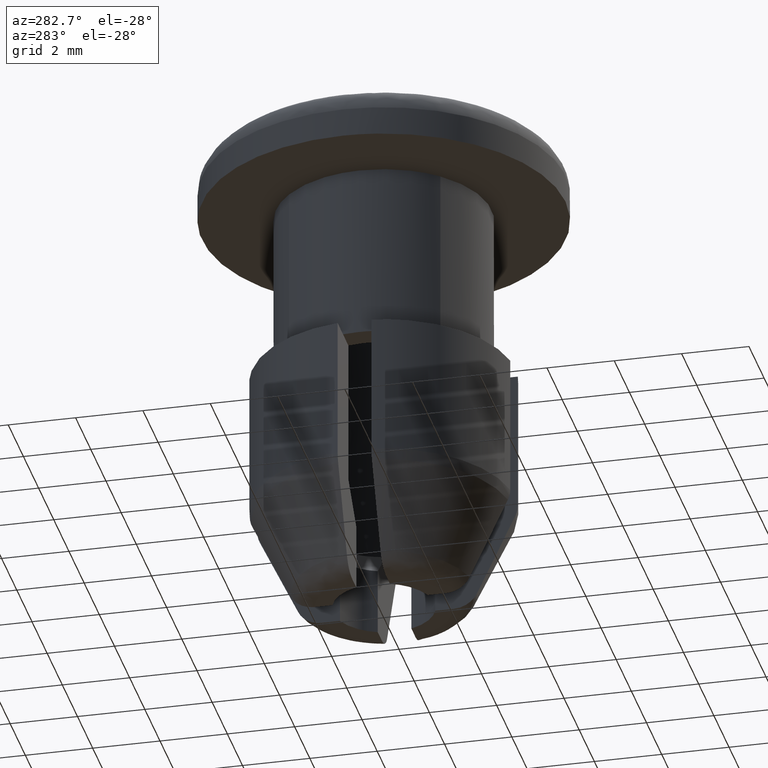
[diagram: clean part render]
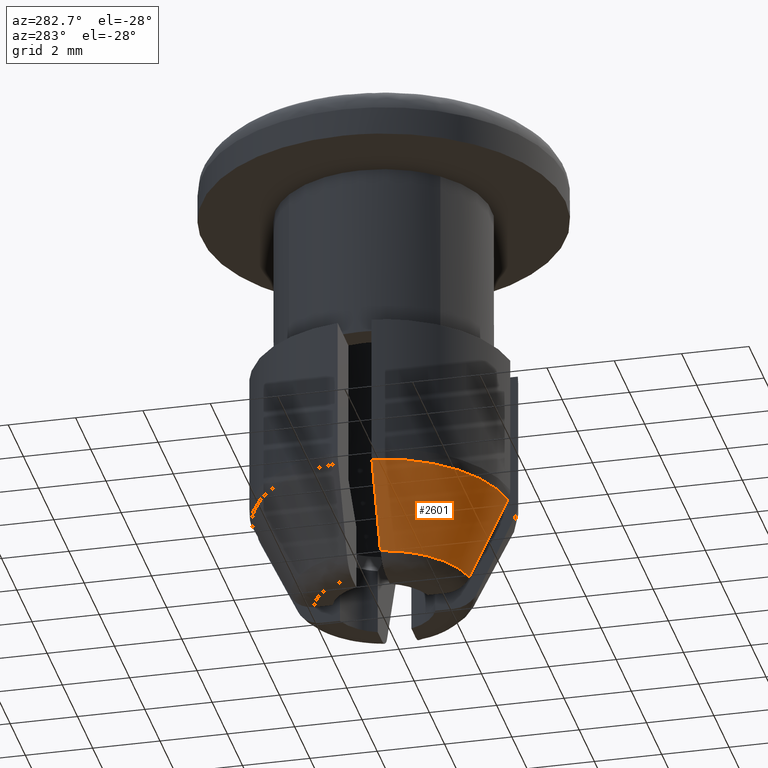
[diagram: same view with one face highlighted and labeled with its STEP entity id]
A machine part, auxiliary view. The second image highlights one B-rep face of the part: STEP entity #2601.
In plain terms, the highlighted face is a freeform B-spline surface patch.
Its self-contained STEP definition (entity closure, byte-faithful):
#1328=CARTESIAN_POINT('',(-2.659426441463000,-0.500000000000000,-14.258784187289519));
#1329=VERTEX_POINT('',#1328);
#1348=CARTESIAN_POINT('',(-3.796920079485480,-0.500000000000000,-11.850999999999880));
#1349=VERTEX_POINT('',#1348);
#1350=CARTESIAN_POINT('',(-2.659426441463000,-0.500000000000000,-14.258784187289519));
#1351=CARTESIAN_POINT('',(-3.040188665878700,-0.500000000000000,-13.456947466627080));
#1352=CARTESIAN_POINT('',(-3.418877603597177,-0.500000000000000,-12.654123893196330));
#1353=CARTESIAN_POINT('',(-3.796920079485477,-0.500000000000000,-11.850999999999880));
#1354=QUASI_UNIFORM_CURVE('',3,(#1350,#1351,#1352,#1353),.UNSPECIFIED.,.F.,.U.);
#1355=EDGE_CURVE('',#1329,#1349,#1354,.T.);
#1804=CARTESIAN_POINT('',(-0.500000000000000,-3.796920079485480,-11.850999999999880));
#1805=VERTEX_POINT('',#1804);
#1819=CARTESIAN_POINT('',(-0.500000000000000,-2.659426441460455,-14.258784187287681));
#1820=VERTEX_POINT('',#1819);
#1821=CARTESIAN_POINT('',(-0.500000000000000,-3.796920079485480,-11.850999999999880));
#1822=CARTESIAN_POINT('',(-0.500000000000000,-3.507637890788905,-12.465541227041420));
#1823=CARTESIAN_POINT('',(-0.500000000000000,-3.217934836621791,-13.079884380166090));
#1824=CARTESIAN_POINT('',(-0.500000000000000,-2.838091228185950,-13.882158835009999));
#1825=CARTESIAN_POINT('',(-0.500000000000000,-2.748823687846236,-14.070502242906169));
#1826=CARTESIAN_POINT('',(-0.500000000000000,-2.659426441460455,-14.258784187287681));
#1827=B_SPLINE_CURVE_WITH_KNOTS('',3,(#1821,#1822,#1823,#1824,#1825,#1826),.UNSPECIFIED.,.F.,.U.,(4,2,4),(0.0,0.124999999999997,0.163357270139191),.UNSPECIFIED.);
#1828=EDGE_CURVE('',#1805,#1820,#1827,.T.);
#2454=CARTESIAN_POINT('',(-0.500000000000000,-2.659426441460454,-14.258784187287681));
#2455=CARTESIAN_POINT('',(-2.317683014058468,-2.317683014058066,-14.258784187287675));
#2456=CARTESIAN_POINT('',(-2.659426441463000,-0.500000000000000,-14.258784187289519));
#2464=(BOUNDED_CURVE()B_SPLINE_CURVE(2,(#2454,#2455,#2456),.UNSPECIFIED.,.F.,.U.)CURVE()GEOMETRIC_REPRESENTATION_ITEM()QUASI_UNIFORM_CURVE()RATIONAL_B_SPLINE_CURVE((1.0,0.825585596460392,1.0))REPRESENTATION_ITEM(''));
#2465=EDGE_CURVE('',#1820,#1329,#2464,.T.);
#2569=CARTESIAN_POINT('',(-0.326444129688414,-2.657957379044823,-14.318978791971761));
#2570=CARTESIAN_POINT('',(-0.470357075523609,-3.829718306980141,-11.789300530200579));
#2571=CARTESIAN_POINT('',(-2.478815576151761,-2.393608135092906,-14.318978791971759));
#2572=CARTESIAN_POINT('',(-3.571601812150740,-3.448830657320825,-11.789300530200579));
#2573=CARTESIAN_POINT('',(-2.667746184126458,-0.233309870570393,-14.318978791971761));
#2574=CARTESIAN_POINT('',(-3.843822508319167,-0.336164563648382,-11.789300530200579));
#2582=(BOUNDED_SURFACE()B_SPLINE_SURFACE(1,2,((#2569,#2571,#2573),(#2570,#2572,#2574)),.UNSPECIFIED.,.F.,.F.,.U.)B_SPLINE_SURFACE_WITH_KNOTS((2,2),(3,3),(0.0,2.791595729379967),(0.0,5.465457942630471),.UNSPECIFIED.)GEOMETRIC_REPRESENTATION_ITEM()RATIONAL_B_SPLINE_SURFACE(((1.0,0.777145961456971,1.0),(1.0,0.777145961456971,1.0)))REPRESENTATION_ITEM('')SURFACE());
#2583=ORIENTED_EDGE('',*,*,#1355,.F.);
#2584=ORIENTED_EDGE('',*,*,#2465,.F.);
#2585=ORIENTED_EDGE('',*,*,#1828,.F.);
#2586=CARTESIAN_POINT('',(-0.500000000000000,-3.796920079485477,-11.850999999999880));
#2587=CARTESIAN_POINT('',(-3.413282495064746,-3.413282495064748,-11.850999999999878));
#2588=CARTESIAN_POINT('',(-3.796920079485477,-0.500000000000001,-11.850999999999880));
#2596=(BOUNDED_CURVE()B_SPLINE_CURVE(2,(#2586,#2587,#2588),.UNSPECIFIED.,.F.,.U.)CURVE()GEOMETRIC_REPRESENTATION_ITEM()QUASI_UNIFORM_CURVE()RATIONAL_B_SPLINE_CURVE((1.0,0.793373195399332,1.0))REPRESENTATION_ITEM(''));
#2597=EDGE_CURVE('',#1805,#1349,#2596,.T.);
#2598=ORIENTED_EDGE('',*,*,#2597,.T.);
#2599=EDGE_LOOP('',(#2583,#2584,#2585,#2598));
#2600=FACE_OUTER_BOUND('',#2599,.T.);
#2601=ADVANCED_FACE('',(#2600),#2582,.T.);